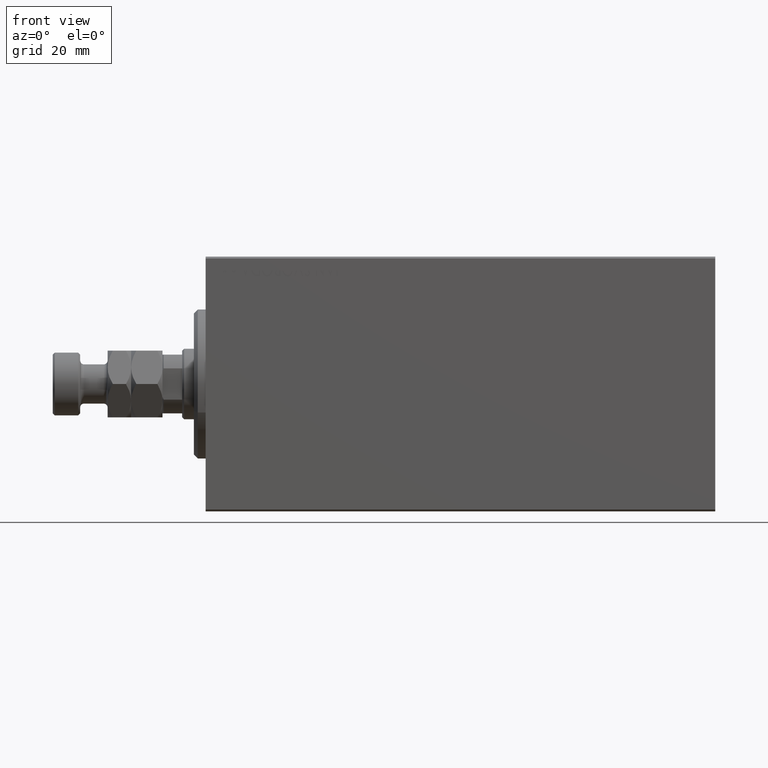
[diagram: clean part render]
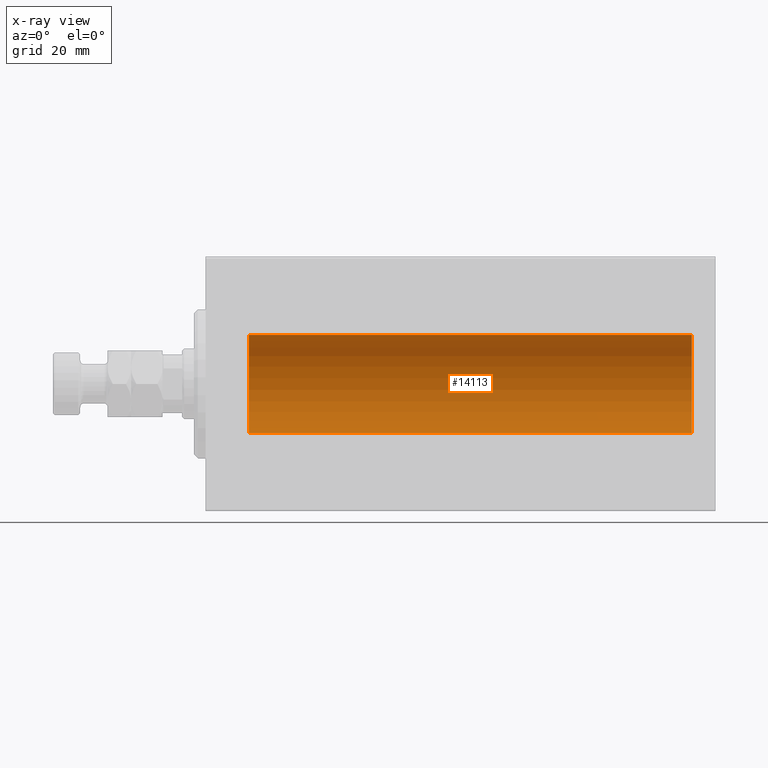
[diagram: x-ray — body ghosted, one internal face saturated and labeled with its STEP entity id]
A machine part, front view, then the same camera in x-ray: the body is ghosted and one INTERNAL B-rep face — a face not visible from any outside direction — is saturated and labeled: STEP entity #14113.
In plain terms, the highlighted cylindrical surface (partial cylindrical patch) has radius 12.5 mm, axis along (-1, -0, -0).
Its self-contained STEP definition (entity closure, byte-faithful):
#430 = EDGE_CURVE ( 'NONE', #29463, #7442, #20332, .T. ) ;
#1426 = CARTESIAN_POINT ( 'NONE',  ( 124.0000000000000000, 0.000000000000000000, 12.50000000000000000 ) ) ;
#2134 = CIRCLE ( 'NONE', #18978, 12.50000000000000000 ) ;
#3616 = CYLINDRICAL_SURFACE ( 'NONE', #27978, 12.50000000000000000 ) ;
#4582 = ORIENTED_EDGE ( 'NONE', *, *, #430, .T. ) ;
#4783 = EDGE_CURVE ( 'NONE', #27507, #40000, #2134, .T. ) ;
#5144 = EDGE_LOOP ( 'NONE', ( #5859, #42162, #6558, #4582 ) ) ;
#5859 = ORIENTED_EDGE ( 'NONE', *, *, #34595, .F. ) ;
#6558 = ORIENTED_EDGE ( 'NONE', *, *, #11901, .T. ) ;
#7442 = VERTEX_POINT ( 'NONE', #10344 ) ;
#8605 = DIRECTION ( 'NONE',  ( -1.000000000000000000, -0.000000000000000000, -0.000000000000000000 ) ) ;
#9667 = CARTESIAN_POINT ( 'NONE',  ( 10.99999999999999645, 0.000000000000000000, 0.000000000000000000 ) ) ;
#10329 = DIRECTION ( 'NONE',  ( -1.000000000000000000, 0.000000000000000000, 0.000000000000000000 ) ) ;
#10344 = CARTESIAN_POINT ( 'NONE',  ( 10.99999999999999645, 1.530808498934191521E-15, -12.50000000000000000 ) ) ;
#11901 = EDGE_CURVE ( 'NONE', #27507, #29463, #17654, .T. ) ;
#14113 = ADVANCED_FACE ( 'NONE', ( #35115 ), #3616, .F. ) ;
#14191 = DIRECTION ( 'NONE',  ( -1.000000000000000000, -0.000000000000000000, -0.000000000000000000 ) ) ;
#15747 = CARTESIAN_POINT ( 'NONE',  ( 124.0000000000000000, 1.530808498934191521E-15, -12.50000000000000000 ) ) ;
#17654 = LINE ( 'NONE', #38372, #29493 ) ;
#18978 = AXIS2_PLACEMENT_3D ( 'NONE', #28339, #38463, #24880 ) ;
#20332 = CIRCLE ( 'NONE', #32085, 12.50000000000000000 ) ;
#21337 = DIRECTION ( 'NONE',  ( -1.000000000000000000, -0.000000000000000000, -0.000000000000000000 ) ) ;
#24880 = DIRECTION ( 'NONE',  ( 0.000000000000000000, 0.000000000000000000, 1.000000000000000000 ) ) ;
#27507 = VERTEX_POINT ( 'NONE', #1426 ) ;
#27978 = AXIS2_PLACEMENT_3D ( 'NONE', #31665, #14191, #28213 ) ;
#28213 = DIRECTION ( 'NONE',  ( 0.000000000000000000, 0.000000000000000000, 1.000000000000000000 ) ) ;
#28339 = CARTESIAN_POINT ( 'NONE',  ( 124.0000000000000000, 0.000000000000000000, 0.000000000000000000 ) ) ;
#29463 = VERTEX_POINT ( 'NONE', #34001 ) ;
#29493 = VECTOR ( 'NONE', #21337, 1000.000000000000000 ) ;
#30816 = DIRECTION ( 'NONE',  ( 0.000000000000000000, 0.000000000000000000, 1.000000000000000000 ) ) ;
#31616 = VECTOR ( 'NONE', #8605, 1000.000000000000000 ) ;
#31665 = CARTESIAN_POINT ( 'NONE',  ( 124.0000000000000000, 0.000000000000000000, 0.000000000000000000 ) ) ;
#32085 = AXIS2_PLACEMENT_3D ( 'NONE', #9667, #10329, #30816 ) ;
#34001 = CARTESIAN_POINT ( 'NONE',  ( 10.99999999999999645, 0.000000000000000000, 12.50000000000000000 ) ) ;
#34595 = EDGE_CURVE ( 'NONE', #40000, #7442, #40095, .T. ) ;
#35115 = FACE_OUTER_BOUND ( 'NONE', #5144, .T. ) ;
#38372 = CARTESIAN_POINT ( 'NONE',  ( 124.0000000000000000, 0.000000000000000000, 12.50000000000000000 ) ) ;
#38463 = DIRECTION ( 'NONE',  ( -1.000000000000000000, 0.000000000000000000, 0.000000000000000000 ) ) ;
#40000 = VERTEX_POINT ( 'NONE', #15747 ) ;
#40095 = LINE ( 'NONE', #43541, #31616 ) ;
#42162 = ORIENTED_EDGE ( 'NONE', *, *, #4783, .F. ) ;
#43541 = CARTESIAN_POINT ( 'NONE',  ( 124.0000000000000000, 1.530808498934191521E-15, -12.50000000000000000 ) ) ;